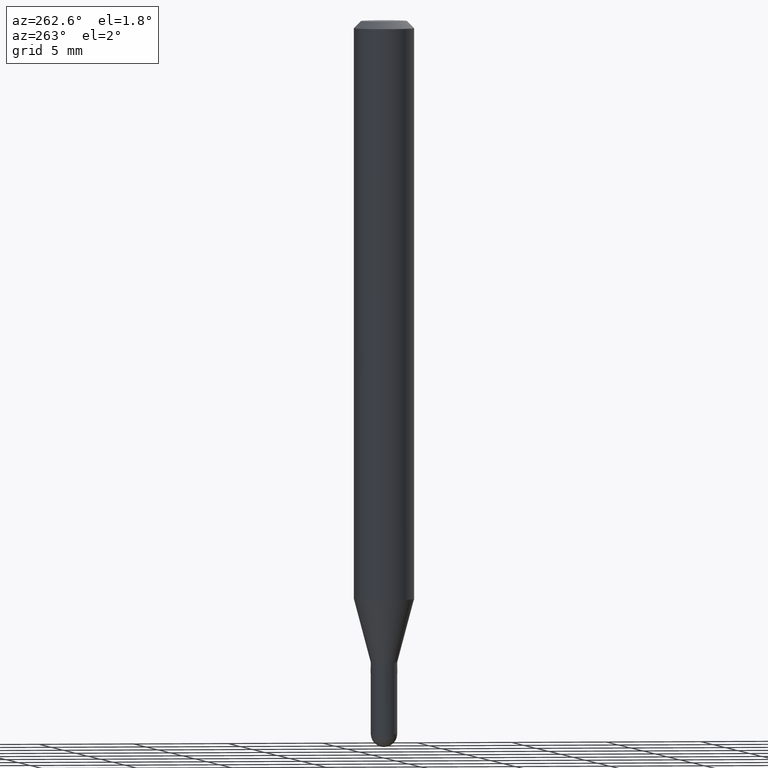
[diagram: clean part render]
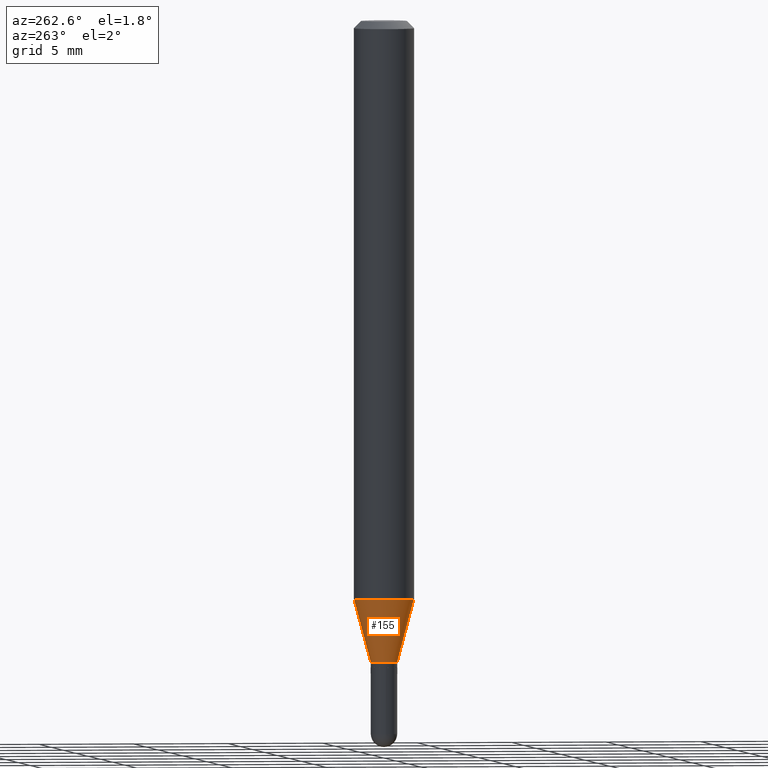
[diagram: same view with one face highlighted and labeled with its STEP entity id]
A machine part, auxiliary view. The second image highlights one B-rep face of the part: STEP entity #155.
In plain terms, the highlighted conical surface has half-angle 15 deg.
Its self-contained STEP definition (entity closure, byte-faithful):
#9 = VERTEX_POINT ( 'NONE', #379 ) ;
#43 = EDGE_CURVE ( 'NONE', #221, #57, #418, .T. ) ;
#54 = DIRECTION ( 'NONE',  ( -6.982962677686265922E-15, -1.000000000000000000, 0.000000000000000000 ) ) ;
#57 = VERTEX_POINT ( 'NONE', #234 ) ;
#58 = CARTESIAN_POINT ( 'NONE',  ( 3.240225248658233717E-29, -4.626242731934923858E-15, -1.325000000000000178 ) ) ;
#74 = LINE ( 'NONE', #153, #157 ) ;
#77 = CONICAL_SURFACE ( 'NONE', #310, 0.02749999999999992034, 0.2617993877991506846 ) ;
#85 = EDGE_CURVE ( 'NONE', #9, #57, #74, .T. ) ;
#100 = CARTESIAN_POINT ( 'NONE',  ( 3.240225248658233717E-29, -4.626242731934923858E-15, -1.325000000000000178 ) ) ;
#107 = ORIENTED_EDGE ( 'NONE', *, *, #439, .F. ) ;
#130 = EDGE_LOOP ( 'NONE', ( #107, #480, #147, #413 ) ) ;
#133 = EDGE_CURVE ( 'NONE', #403, #9, #449, .T. ) ;
#147 = ORIENTED_EDGE ( 'NONE', *, *, #85, .T. ) ;
#153 = CARTESIAN_POINT ( 'NONE',  ( -1.920314736363393602E-16, -0.02750000000000454858, -1.325000000000000178 ) ) ;
#155 = ADVANCED_FACE ( 'NONE', ( #328 ), #77, .T. ) ;
#157 = VECTOR ( 'NONE', #239, 39.37007874015748143 ) ;
#185 = CARTESIAN_POINT ( 'NONE',  ( 3.197442310920756402E-16, 0.02749999999999529210, -1.325000000000000178 ) ) ;
#189 = LINE ( 'NONE', #378, #387 ) ;
#198 = AXIS2_PLACEMENT_3D ( 'NONE', #58, #367, #54 ) ;
#221 = VERTEX_POINT ( 'NONE', #512 ) ;
#234 = CARTESIAN_POINT ( 'NONE',  ( -4.364351673553625802E-16, -0.06250000000000417721, -1.194378221735089562 ) ) ;
#238 = DIRECTION ( 'NONE',  ( -6.982962677686265922E-15, -1.000000000000000000, 0.000000000000000000 ) ) ;
#239 = DIRECTION ( 'NONE',  ( -1.807323732225332900E-15, -0.2588190451025185745, 0.9659258262890689783 ) ) ;
#290 = DIRECTION ( 'NONE',  ( -2.445453017855270407E-29, 3.491503948630130135E-15, 1.000000000000000000 ) ) ;
#310 = AXIS2_PLACEMENT_3D ( 'NONE', #100, #290, #238 ) ;
#328 = FACE_OUTER_BOUND ( 'NONE', #130, .T. ) ;
#343 = AXIS2_PLACEMENT_3D ( 'NONE', #500, #386, #412 ) ;
#367 = DIRECTION ( 'NONE',  ( -2.445453017855270407E-29, 3.491503948630130135E-15, 1.000000000000000000 ) ) ;
#378 = CARTESIAN_POINT ( 'NONE',  ( 1.953992523340593531E-16, 0.02749999999999529210, -1.325000000000000178 ) ) ;
#379 = CARTESIAN_POINT ( 'NONE',  ( -1.920314736363393602E-16, -0.02750000000000454858, -1.325000000000000178 ) ) ;
#386 = DIRECTION ( 'NONE',  ( -2.445453017855270407E-29, 3.491503948630130135E-15, 1.000000000000000000 ) ) ;
#387 = VECTOR ( 'NONE', #499, 39.37007874015748143 ) ;
#403 = VERTEX_POINT ( 'NONE', #185 ) ;
#412 = DIRECTION ( 'NONE',  ( -6.982962677686265922E-15, -1.000000000000000000, 4.370956789862821150E-15 ) ) ;
#413 = ORIENTED_EDGE ( 'NONE', *, *, #43, .F. ) ;
#418 = CIRCLE ( 'NONE', #343, 0.06250000000000000000 ) ;
#439 = EDGE_CURVE ( 'NONE', #403, #221, #189, .T. ) ;
#449 = CIRCLE ( 'NONE', #198, 0.02749999999999992034 ) ;
#480 = ORIENTED_EDGE ( 'NONE', *, *, #133, .T. ) ;
#499 = DIRECTION ( 'NONE',  ( 1.839019923739603076E-15, 0.2588190451025253469, 0.9659258262890670910 ) ) ;
#500 = CARTESIAN_POINT ( 'NONE',  ( 2.920795826802686836E-29, -4.170176277345898913E-15, -1.194378221735089785 ) ) ;
#512 = CARTESIAN_POINT ( 'NONE',  ( 4.440892098500915082E-16, 0.06249999999999580197, -1.194378221735090229 ) ) ;